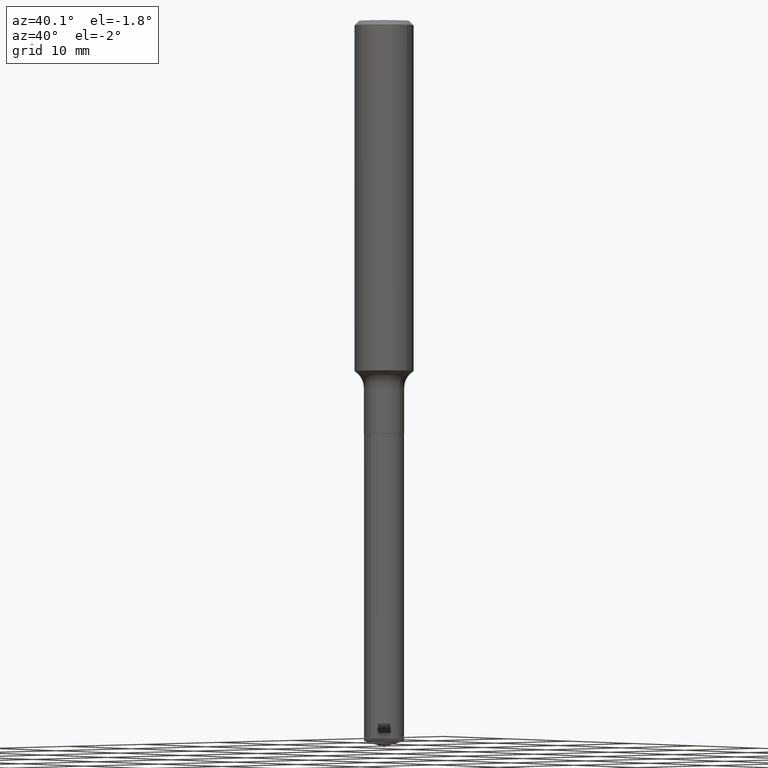
[diagram: clean part render]
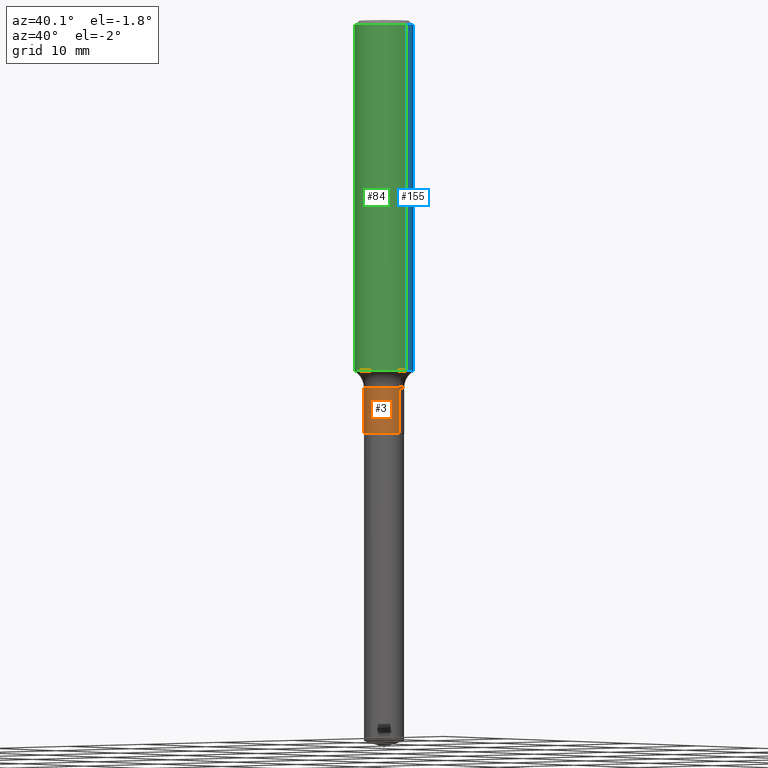
[diagram: same view with three faces highlighted in distinct colors, each labeled with its STEP entity id]
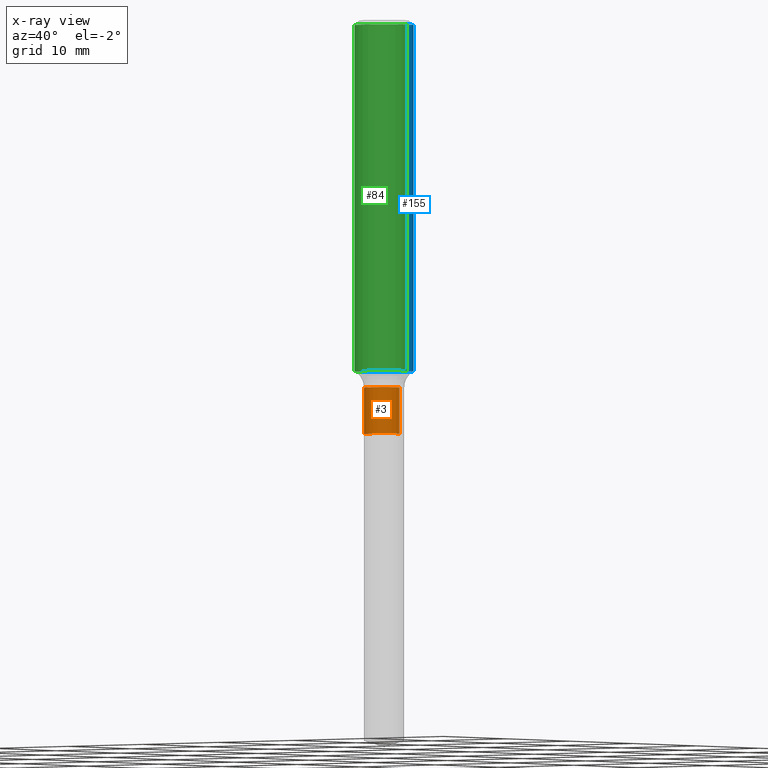
[diagram: x-ray of the same camera — body ghosted, the three highlighted faces saturated]
A machine part, auxiliary view with three faces highlighted in distinct colors.
The next image is the same camera in x-ray (body ghosted, the three faces saturated) — at least one of them is partly hidden behind the body in this view.
Their STEP definitions:

[orange] entity #3 — the highlighted cylindrical surface (edge-blend (fillet) strip) has radius 2.0498 mm, axis along (-0, 0, 1).
#3 = ADVANCED_FACE ( 'NONE', ( #421 ), #113, .T. ) ;
#30 = AXIS2_PLACEMENT_3D ( 'NONE', #81, #237, #351 ) ;
#39 = VERTEX_POINT ( 'NONE', #77 ) ;
#42 = DIRECTION ( 'NONE',  ( -2.445468806185136597E-29, 3.491481338843145583E-15, 1.000000000000000000 ) ) ;
#51 = EDGE_CURVE ( 'NONE', #240, #172, #349, .T. ) ;
#63 = CARTESIAN_POINT ( 'NONE',  ( -0.08069999999999998008, 5.734079877584007085E-16, -3.969580617835708043E-30 ) ) ;
#77 = CARTESIAN_POINT ( 'NONE',  ( 0.08069999999999999396, -6.348909666552373459E-15, -1.657000000000000028 ) ) ;
#81 = CARTESIAN_POINT ( 'NONE',  ( 0.000000000000000000, 0.000000000000000000, 0.000000000000000000 ) ) ;
#97 = CIRCLE ( 'NONE', #231, 0.08069999999999999396 ) ;
#102 = DIRECTION ( 'NONE',  ( -2.445468806185136877E-29, 3.491481338843145188E-15, 1.000000000000000000 ) ) ;
#104 = CARTESIAN_POINT ( 'NONE',  ( -0.08069999999999999396, -4.888839992794759829E-15, -1.657000000000000028 ) ) ;
#113 = CYLINDRICAL_SURFACE ( 'NONE', #30, 0.08069999999999998008 ) ;
#115 = AXIS2_PLACEMENT_3D ( 'NONE', #381, #42, #290 ) ;
#146 = VECTOR ( 'NONE', #213, 39.37007874015748143 ) ;
#172 = VERTEX_POINT ( 'NONE', #241 ) ;
#197 = ORIENTED_EDGE ( 'NONE', *, *, #51, .F. ) ;
#202 = CARTESIAN_POINT ( 'NONE',  ( -0.08069999999999998008, -4.888839992794759829E-15, -1.471900000000000208 ) ) ;
#211 = VECTOR ( 'NONE', #102, 39.37007874015748143 ) ;
#213 = DIRECTION ( 'NONE',  ( -2.445468806185136877E-29, 3.491481338843145188E-15, 1.000000000000000000 ) ) ;
#231 = AXIS2_PLACEMENT_3D ( 'NONE', #272, #283, #420 ) ;
#237 = DIRECTION ( 'NONE',  ( -2.445468806185136597E-29, 3.491481338843145583E-15, 1.000000000000000000 ) ) ;
#240 = VERTEX_POINT ( 'NONE', #202 ) ;
#241 = CARTESIAN_POINT ( 'NONE',  ( 0.08069999999999998008, -5.702636470732508383E-15, -1.471900000000000208 ) ) ;
#258 = ORIENTED_EDGE ( 'NONE', *, *, #387, .F. ) ;
#268 = ORIENTED_EDGE ( 'NONE', *, *, #480, .T. ) ;
#272 = CARTESIAN_POINT ( 'NONE',  ( 4.052141811848771691E-29, -5.785384578463092385E-15, -1.657000000000000028 ) ) ;
#283 = DIRECTION ( 'NONE',  ( -2.445468806185136597E-29, 3.491481338843145583E-15, 1.000000000000000000 ) ) ;
#290 = DIRECTION ( 'NONE',  ( 1.000000000000000000, -6.982962677686261977E-15, 0.000000000000000000 ) ) ;
#303 = VERTEX_POINT ( 'NONE', #104 ) ;
#348 = EDGE_LOOP ( 'NONE', ( #258, #268, #440, #197 ) ) ;
#349 = CIRCLE ( 'NONE', #115, 0.08069999999999998008 ) ;
#351 = DIRECTION ( 'NONE',  ( 1.000000000000000000, -6.982962677686265133E-15, 4.876176775795935232E-29 ) ) ;
#353 = EDGE_CURVE ( 'NONE', #39, #172, #446, .T. ) ;
#381 = CARTESIAN_POINT ( 'NONE',  ( 3.599485535823903241E-29, -5.139111382643227310E-15, -1.471900000000000208 ) ) ;
#387 = EDGE_CURVE ( 'NONE', #303, #240, #401, .T. ) ;
#401 = LINE ( 'NONE', #63, #146 ) ;
#420 = DIRECTION ( 'NONE',  ( 1.000000000000000000, -6.982962677686260400E-15, 0.000000000000000000 ) ) ;
#421 = FACE_OUTER_BOUND ( 'NONE', #348, .T. ) ;
#436 = CARTESIAN_POINT ( 'NONE',  ( 0.08069999999999998008, -5.635250880892814680E-16, 3.935074658067318957E-30 ) ) ;
#440 = ORIENTED_EDGE ( 'NONE', *, *, #353, .T. ) ;
#446 = LINE ( 'NONE', #436, #211 ) ;
#480 = EDGE_CURVE ( 'NONE', #303, #39, #97, .T. ) ;

[blue] entity #155 — the highlighted cylindrical surface (edge-blend (fillet) strip) has radius 2.9997 mm, axis along (-0, 0, 1).
#4 = DIRECTION ( 'NONE',  ( -2.445468806185136877E-29, 3.491481338843145188E-15, 1.000000000000000000 ) ) ;
#11 = CARTESIAN_POINT ( 'NONE',  ( -0.1180999999999999966, -1.645063139276093092E-15, -0.01771500000000011607 ) ) ;
#23 = DIRECTION ( 'NONE',  ( 1.000000000000000000, -6.982962677686266711E-15, 4.876176775795935793E-29 ) ) ;
#28 = CARTESIAN_POINT ( 'NONE',  ( 0.1181000000000001077, -8.246878922347488542E-16, 5.758764772215005345E-30 ) ) ;
#40 = VECTOR ( 'NONE', #374, 39.37007874015748143 ) ;
#46 = ORIENTED_EDGE ( 'NONE', *, *, #72, .T. ) ;
#50 = CARTESIAN_POINT ( 'NONE',  ( 0.1181000000000001354, -5.731264520734688193E-15, -1.405299399402107685 ) ) ;
#52 = DIRECTION ( 'NONE',  ( 1.000000000000000000, -6.982962677686266711E-15, 0.000000000000000000 ) ) ;
#53 = CIRCLE ( 'NONE', #122, 0.1180999999999999966 ) ;
#68 = VERTEX_POINT ( 'NONE', #158 ) ;
#72 = EDGE_CURVE ( 'NONE', #119, #68, #463, .T. ) ;
#119 = VERTEX_POINT ( 'NONE', #50 ) ;
#122 = AXIS2_PLACEMENT_3D ( 'NONE', #428, #326, #52 ) ;
#155 = ADVANCED_FACE ( 'NONE', ( #390 ), #363, .T. ) ;
#158 = CARTESIAN_POINT ( 'NONE',  ( -0.1181000000000001354, -4.067425657567260156E-15, -1.405299399402107685 ) ) ;
#164 = DIRECTION ( 'NONE',  ( 1.000000000000000000, -6.982962677686268288E-15, 0.000000000000000000 ) ) ;
#206 = CARTESIAN_POINT ( 'NONE',  ( 0.000000000000000000, 0.000000000000000000, 0.000000000000000000 ) ) ;
#221 = VERTEX_POINT ( 'NONE', #11 ) ;
#236 = EDGE_CURVE ( 'NONE', #455, #221, #53, .T. ) ;
#247 = DIRECTION ( 'NONE',  ( -2.445468806185136597E-29, 3.491481338843145583E-15, 1.000000000000000000 ) ) ;
#255 = AXIS2_PLACEMENT_3D ( 'NONE', #206, #397, #23 ) ;
#277 = ORIENTED_EDGE ( 'NONE', *, *, #414, .T. ) ;
#291 = LINE ( 'NONE', #28, #40 ) ;
#320 = EDGE_CURVE ( 'NONE', #119, #455, #291, .T. ) ;
#326 = DIRECTION ( 'NONE',  ( -2.445468806185136597E-29, 3.491481338843145583E-15, 1.000000000000000000 ) ) ;
#363 = CYLINDRICAL_SURFACE ( 'NONE', #255, 0.1181000000000001077 ) ;
#372 = ORIENTED_EDGE ( 'NONE', *, *, #320, .F. ) ;
#374 = DIRECTION ( 'NONE',  ( -2.445468806185136877E-29, 3.491481338843145188E-15, 1.000000000000000000 ) ) ;
#375 = ORIENTED_EDGE ( 'NONE', *, *, #236, .F. ) ;
#383 = EDGE_LOOP ( 'NONE', ( #46, #277, #375, #372 ) ) ;
#384 = CARTESIAN_POINT ( 'NONE',  ( 0.1180999999999999966, -8.865394841523548556E-16, -0.01771500000000011607 ) ) ;
#389 = CARTESIAN_POINT ( 'NONE',  ( 3.436615844588562058E-29, -4.906576628499939141E-15, -1.405299399402107685 ) ) ;
#390 = FACE_OUTER_BOUND ( 'NONE', #383, .T. ) ;
#397 = DIRECTION ( 'NONE',  ( -2.445468806185136597E-29, 3.491481338843145583E-15, 1.000000000000000000 ) ) ;
#414 = EDGE_CURVE ( 'NONE', #68, #221, #418, .T. ) ;
#418 = LINE ( 'NONE', #466, #464 ) ;
#428 = CARTESIAN_POINT ( 'NONE',  ( 4.332147990156998495E-31, -6.185159191760672860E-17, -0.01771500000000011607 ) ) ;
#447 = AXIS2_PLACEMENT_3D ( 'NONE', #389, #247, #164 ) ;
#455 = VERTEX_POINT ( 'NONE', #384 ) ;
#463 = CIRCLE ( 'NONE', #447, 0.1181000000000002048 ) ;
#464 = VECTOR ( 'NONE', #4, 39.37007874015748143 ) ;
#466 = CARTESIAN_POINT ( 'NONE',  ( -0.1181000000000001077, 8.391509709326790846E-16, -5.809262341591049389E-30 ) ) ;

[green] entity #84 — the highlighted cylindrical surface (edge-blend (fillet) strip) has radius 2.9997 mm, axis along (-0, 0, 1).
#4 = DIRECTION ( 'NONE',  ( -2.445468806185136877E-29, 3.491481338843145188E-15, 1.000000000000000000 ) ) ;
#11 = CARTESIAN_POINT ( 'NONE',  ( -0.1180999999999999966, -1.645063139276093092E-15, -0.01771500000000011607 ) ) ;
#28 = CARTESIAN_POINT ( 'NONE',  ( 0.1181000000000001077, -8.246878922347488542E-16, 5.758764772215005345E-30 ) ) ;
#40 = VECTOR ( 'NONE', #374, 39.37007874015748143 ) ;
#50 = CARTESIAN_POINT ( 'NONE',  ( 0.1181000000000001354, -5.731264520734688193E-15, -1.405299399402107685 ) ) ;
#68 = VERTEX_POINT ( 'NONE', #158 ) ;
#70 = CIRCLE ( 'NONE', #130, 0.1180999999999999966 ) ;
#84 = ADVANCED_FACE ( 'NONE', ( #86 ), #318, .T. ) ;
#86 = FACE_OUTER_BOUND ( 'NONE', #182, .T. ) ;
#101 = ORIENTED_EDGE ( 'NONE', *, *, #422, .F. ) ;
#118 = DIRECTION ( 'NONE',  ( 1.000000000000000000, -6.982962677686266711E-15, 0.000000000000000000 ) ) ;
#119 = VERTEX_POINT ( 'NONE', #50 ) ;
#123 = CIRCLE ( 'NONE', #239, 0.1181000000000002048 ) ;
#130 = AXIS2_PLACEMENT_3D ( 'NONE', #147, #309, #118 ) ;
#134 = CARTESIAN_POINT ( 'NONE',  ( 0.000000000000000000, 0.000000000000000000, 0.000000000000000000 ) ) ;
#147 = CARTESIAN_POINT ( 'NONE',  ( 4.332147990156998495E-31, -6.185159191760672860E-17, -0.01771500000000011607 ) ) ;
#158 = CARTESIAN_POINT ( 'NONE',  ( -0.1181000000000001354, -4.067425657567260156E-15, -1.405299399402107685 ) ) ;
#182 = EDGE_LOOP ( 'NONE', ( #187, #415, #307, #101 ) ) ;
#183 = DIRECTION ( 'NONE',  ( 1.000000000000000000, -6.982962677686268288E-15, 0.000000000000000000 ) ) ;
#187 = ORIENTED_EDGE ( 'NONE', *, *, #414, .F. ) ;
#221 = VERTEX_POINT ( 'NONE', #11 ) ;
#226 = DIRECTION ( 'NONE',  ( -2.445468806185136597E-29, 3.491481338843145583E-15, 1.000000000000000000 ) ) ;
#238 = AXIS2_PLACEMENT_3D ( 'NONE', #134, #427, #282 ) ;
#239 = AXIS2_PLACEMENT_3D ( 'NONE', #371, #226, #183 ) ;
#282 = DIRECTION ( 'NONE',  ( 1.000000000000000000, -6.982962677686266711E-15, 4.876176775795935793E-29 ) ) ;
#291 = LINE ( 'NONE', #28, #40 ) ;
#307 = ORIENTED_EDGE ( 'NONE', *, *, #320, .T. ) ;
#309 = DIRECTION ( 'NONE',  ( -2.445468806185136597E-29, 3.491481338843145583E-15, 1.000000000000000000 ) ) ;
#318 = CYLINDRICAL_SURFACE ( 'NONE', #238, 0.1181000000000001077 ) ;
#320 = EDGE_CURVE ( 'NONE', #119, #455, #291, .T. ) ;
#371 = CARTESIAN_POINT ( 'NONE',  ( 3.436615844588562058E-29, -4.906576628499939141E-15, -1.405299399402107685 ) ) ;
#373 = EDGE_CURVE ( 'NONE', #68, #119, #123, .T. ) ;
#374 = DIRECTION ( 'NONE',  ( -2.445468806185136877E-29, 3.491481338843145188E-15, 1.000000000000000000 ) ) ;
#384 = CARTESIAN_POINT ( 'NONE',  ( 0.1180999999999999966, -8.865394841523548556E-16, -0.01771500000000011607 ) ) ;
#414 = EDGE_CURVE ( 'NONE', #68, #221, #418, .T. ) ;
#415 = ORIENTED_EDGE ( 'NONE', *, *, #373, .T. ) ;
#418 = LINE ( 'NONE', #466, #464 ) ;
#422 = EDGE_CURVE ( 'NONE', #221, #455, #70, .T. ) ;
#427 = DIRECTION ( 'NONE',  ( -2.445468806185136597E-29, 3.491481338843145583E-15, 1.000000000000000000 ) ) ;
#455 = VERTEX_POINT ( 'NONE', #384 ) ;
#464 = VECTOR ( 'NONE', #4, 39.37007874015748143 ) ;
#466 = CARTESIAN_POINT ( 'NONE',  ( -0.1181000000000001077, 8.391509709326790846E-16, -5.809262341591049389E-30 ) ) ;